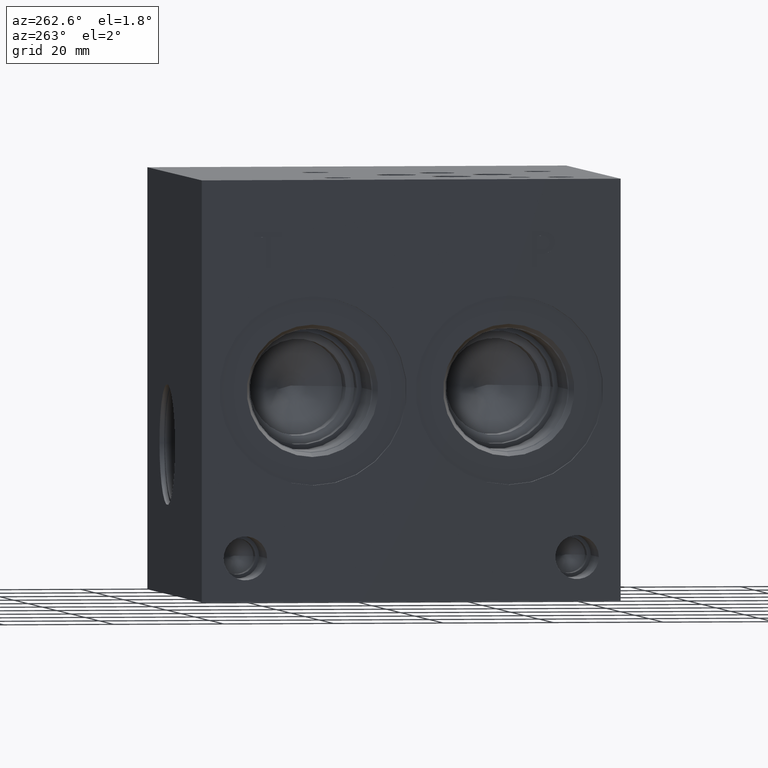
[diagram: clean part render]
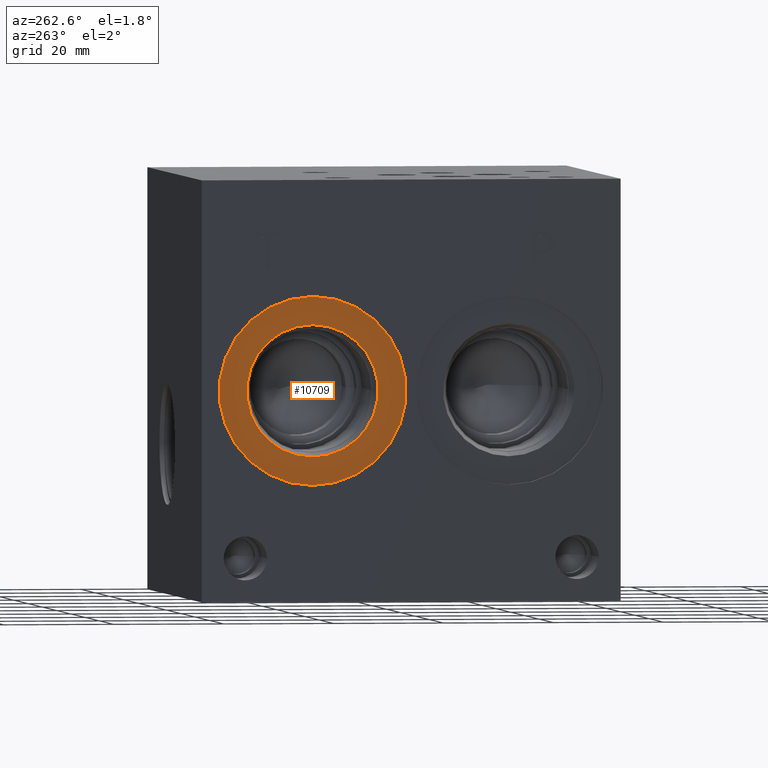
[diagram: same view with one face highlighted and labeled with its STEP entity id]
A machine part, auxiliary view. The second image highlights one B-rep face of the part: STEP entity #10709.
In plain terms, the highlighted planar face has unit normal (1, 0, 0).
Its self-contained STEP definition (entity closure, byte-faithful):
#286=CIRCLE('',#11305,17.0688);
#287=CIRCLE('',#11306,17.0688);
#288=CIRCLE('',#11308,11.9507);
#289=CIRCLE('',#11309,11.9507);
#393=FACE_BOUND('',#1968,.T.);
#1355=FACE_OUTER_BOUND('',#1967,.T.);
#1967=EDGE_LOOP('',(#9277,#9278));
#1968=EDGE_LOOP('',(#9279,#9280));
#4953=VERTEX_POINT('',#18441);
#4954=VERTEX_POINT('',#18443);
#4955=VERTEX_POINT('',#18447);
#4956=VERTEX_POINT('',#18448);
#6424=EDGE_CURVE('',#4953,#4954,#286,.T.);
#6425=EDGE_CURVE('',#4954,#4953,#287,.T.);
#6426=EDGE_CURVE('',#4955,#4956,#288,.T.);
#6427=EDGE_CURVE('',#4956,#4955,#289,.T.);
#9277=ORIENTED_EDGE('',*,*,#6425,.F.);
#9278=ORIENTED_EDGE('',*,*,#6424,.F.);
#9279=ORIENTED_EDGE('',*,*,#6426,.T.);
#9280=ORIENTED_EDGE('',*,*,#6427,.T.);
#9770=PLANE('',#11307);
#10709=ADVANCED_FACE('',(#1355,#393),#9770,.F.);
#11305=AXIS2_PLACEMENT_3D('',#18444,#13437,#13438);
#11306=AXIS2_PLACEMENT_3D('',#18445,#13439,#13440);
#11307=AXIS2_PLACEMENT_3D('',#18446,#13441,#13442);
#11308=AXIS2_PLACEMENT_3D('',#18449,#13443,#13444);
#11309=AXIS2_PLACEMENT_3D('',#18450,#13445,#13446);
#13437=DIRECTION('center_axis',(1.,0.,0.));
#13438=DIRECTION('ref_axis',(0.,0.,-1.));
#13439=DIRECTION('center_axis',(1.,0.,0.));
#13440=DIRECTION('ref_axis',(0.,0.,-1.));
#13441=DIRECTION('center_axis',(1.,0.,0.));
#13442=DIRECTION('ref_axis',(0.,0.,-1.));
#13443=DIRECTION('center_axis',(1.,0.,0.));
#13444=DIRECTION('ref_axis',(0.,0.,-1.));
#13445=DIRECTION('center_axis',(1.,0.,0.));
#13446=DIRECTION('ref_axis',(0.,0.,-1.));
#18441=CARTESIAN_POINT('',(0.7874,55.9562,21.0312));
#18443=CARTESIAN_POINT('',(0.7874,55.9562,55.1688));
#18444=CARTESIAN_POINT('Origin',(0.7874,55.9562,38.1));
#18445=CARTESIAN_POINT('Origin',(0.7874,55.9562,38.1));
#18446=CARTESIAN_POINT('Origin',(0.7874,55.9562,50.0507));
#18447=CARTESIAN_POINT('',(0.7874,55.9562,50.0507));
#18448=CARTESIAN_POINT('',(0.787399999999999,55.9562,26.1493));
#18449=CARTESIAN_POINT('Origin',(0.7874,55.9562,38.1));
#18450=CARTESIAN_POINT('Origin',(0.7874,55.9562,38.1));